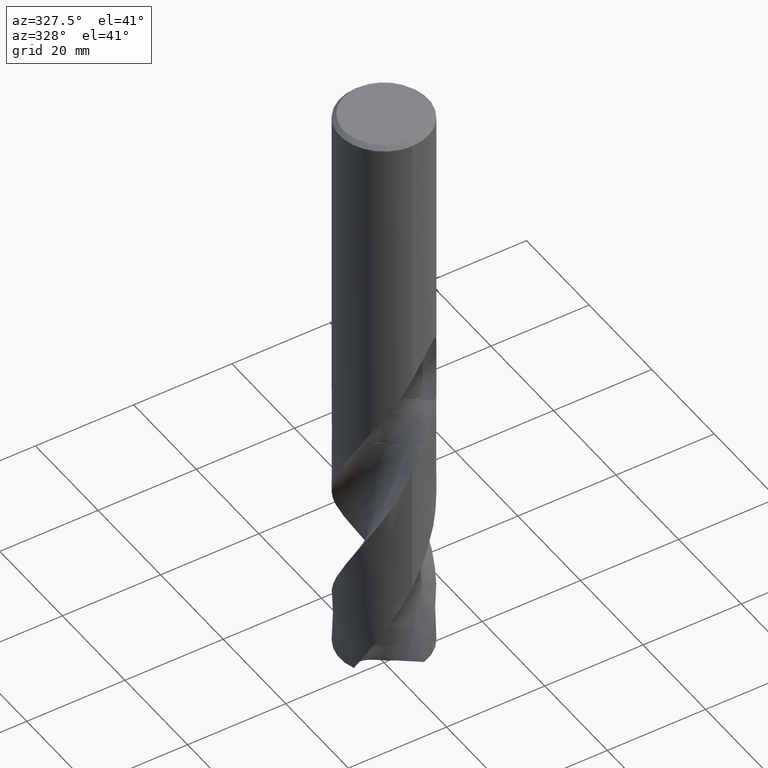
[diagram: clean part render]
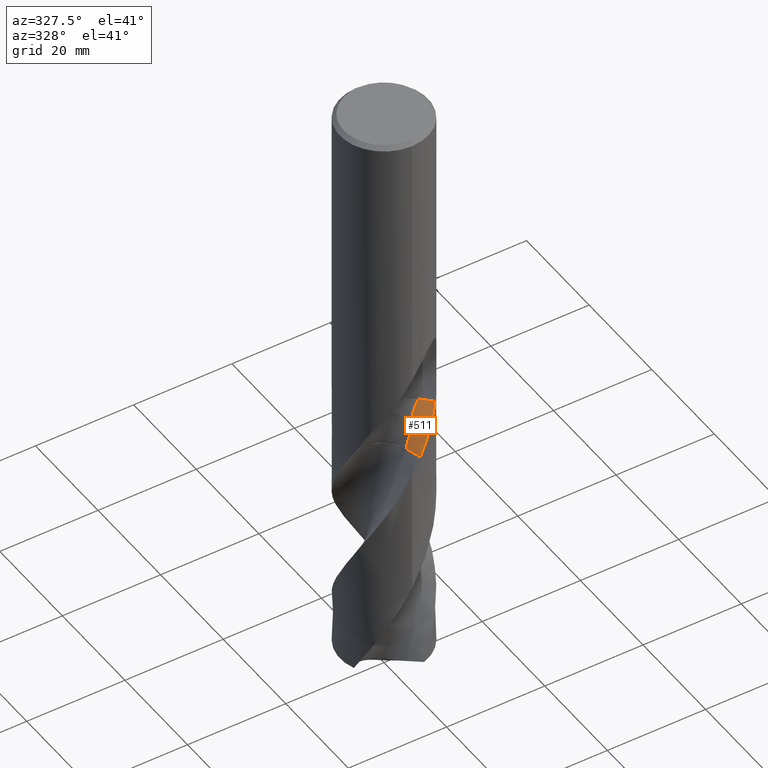
[diagram: same view with one face highlighted and labeled with its STEP entity id]
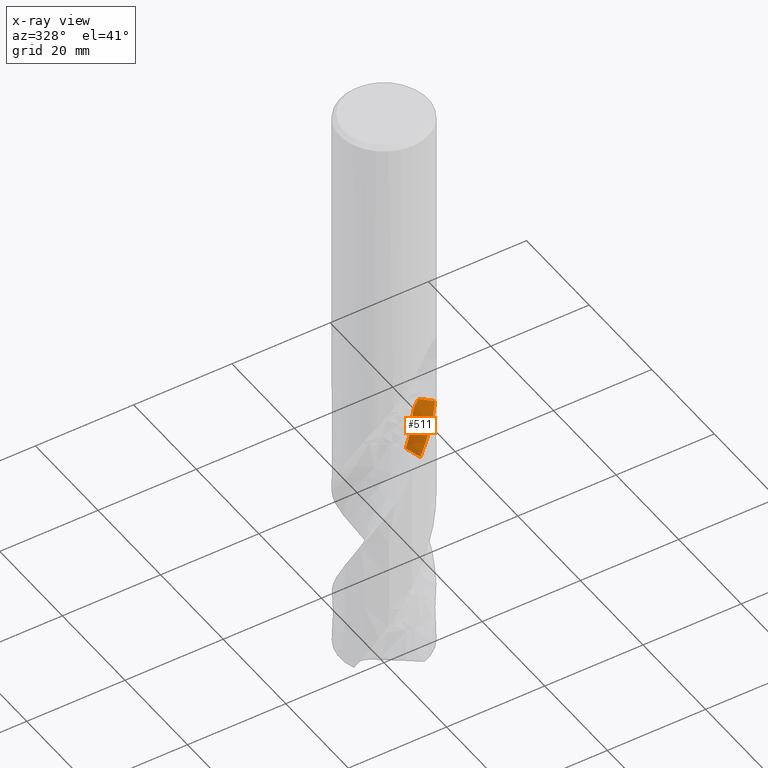
[diagram: x-ray of the same camera — body ghosted, the highlighted face saturated]
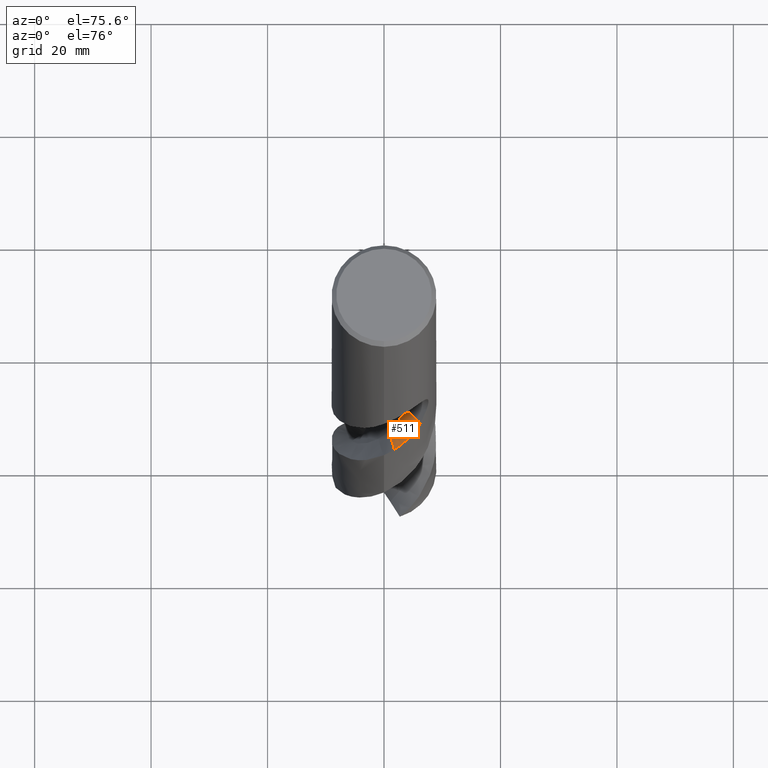
[diagram: same view with one face highlighted and labeled with its STEP entity id]
A machine part, auxiliary view. The second image highlights one B-rep face of the part: STEP entity #511.
The next image is the same camera in x-ray: the body ghosted, the highlighted face saturated — about 0% of this face is hidden behind the body in this view.
A second angle (auxiliary view) of the same face is appended — the face is thin or edge-on in the first view.
In plain terms, the highlighted face is a freeform B-spline surface patch.
Its self-contained STEP definition (entity closure, byte-faithful):
#293=VERTEX_POINT('',#770);
#333=EDGE_CURVE('',#409,#293,#812,.T.);
#339=VERTEX_POINT('',#819);
#409=VERTEX_POINT('',#897);
#421=EDGE_CURVE('',#503,#293,#910,.T.);
#503=VERTEX_POINT('',#998);
#511=ADVANCED_FACE('',(#1006),#1007,.F.);
#607=EDGE_CURVE('',#503,#339,#1111,.T.);
#697=EDGE_CURVE('',#339,#409,#1211,.T.);
#770=CARTESIAN_POINT('',(0.879806644337448,-5.58787155962668,-72.5));
#812=B_SPLINE_CURVE_WITH_KNOTS('',3,(#1563,#1564,#1565,#1566),.UNSPECIFIED.,.F.,.F.,(4,4),(0.0,3.59385555434529),.UNSPECIFIED.);
#819=CARTESIAN_POINT('',(6.2556960835415,-6.47041470930292,-63.613));
#897=CARTESIAN_POINT('',(1.78047736607555,-8.82212561398287,-72.5));
#910=B_SPLINE_CURVE_WITH_KNOTS('',3,(#3492,#3493,#3494,#3495,#3496,#3497,#3498,#3499,#3500,#3501,#3502,#3503,#3504,#3505,#3506,#3507,#3508,#3509,#3510,#3511,#3512,#3513,#3514,#3515,#3516,#3517,#3518,#3519,#3520,#3521,#3522,#3523,#3524,#3525,#3526,#3527,#3528,#3529,#3530,#3531,#3532,#3533,#3534),.UNSPECIFIED.,.F.,.F.,(4,1,2,2,2,2,2,2,1,2,2,2,2,2,2,2,2,2,2,2,1,2,4),(0.0,1.1933961123314,2.3867922246628,3.5801883369942,4.7735844493256,7.1603766739884,9.54716889865119,11.933961123314,14.3207533479768,19.0943377973024,23.867922246628,28.6415066959536,33.4150911452792,38.1886755946048,42.9622600439304,47.735844493256,52.5094289425816,57.2830133919072,62.0565978412328,66.8301822905584,71.603766739884,73.9905589645468,76.3773511892095),.UNSPECIFIED.);
#998=CARTESIAN_POINT('',(4.24264068704858,-4.45735931295143,-63.613));
#1006=FACE_OUTER_BOUND('',#4735,.T.);
#1007=B_SPLINE_SURFACE_WITH_KNOTS('',3,3,((#4736,#4737,#4738,#4739,#4740,#4741,#4742,#4743,#4744,#4745,#4746,#4747,#4748,#4749,#4750,#4751,#4752,#4753,#4754,#4755,#4756,#4757,#4758,#4759,#4760,#4761,#4762,#4763,#4764,#4765,#4766,#4767,#4768,#4769,#4770,#4771,#4772,#4773,#4774,#4775,#4776,#4777,#4778,#4779,#4780,#4781,#4782,#4783,#4784,#4785,#4786,#4787,#4788,#4789),(#4790,#4791,#4792,#4793,#4794,#4795,#4796,#4797,#4798,#4799,#4800,#4801,#4802,#4803,#4804,#4805,#4806,#4807,#4808,#4809,#4810,#4811,#4812,#4813,#4814,#4815,#4816,#4817,#4818,#4819,#4820,#4821,#4822,#4823,#4824,#4825,#4826,#4827,#4828,#4829,#4830,#4831,#4832,#4833,#4834,#4835,#4836,#4837,#4838,#4839,#4840,#4841,#4842,#4843),(#4844,#4845,#4846,#4847,#4848,#4849,#4850,#4851,#4852,#4853,#4854,#4855,#4856,#4857,#4858,#4859,#4860,#4861,#4862,#4863,#4864,#4865,#4866,#4867,#4868,#4869,#4870,#4871,#4872,#4873,#4874,#4875,#4876,#4877,#4878,#4879,#4880,#4881,#4882,#4883,#4884,#4885,#4886,#4887,#4888,#4889,#4890,#4891,#4892,#4893,#4894,#4895,#4896,#4897),(#4898,#4899,#4900,#4901,#4902,#4903,#4904,#4905,#4906,#4907,#4908,#4909,#4910,#4911,#4912,#4913,#4914,#4915,#4916,#4917,#4918,#4919,#4920,#4921,#4922,#4923,#4924,#4925,#4926,#4927,#4928,#4929,#4930,#4931,#4932,#4933,#4934,#4935,#4936,#4937,#4938,#4939,#4940,#4941,#4942,#4943,#4944,#4945,#4946,#4947,#4948,#4949,#4950,#4951)),.UNSPECIFIED.,.F.,.F.,.F.,(4,4),(4,1,2,2,2,2,2,2,1,1,2,1,2,1,2,1,2,1,2,1,2,1,2,1,2,1,2,1,2,1,2,1,2,4),(6.90283062914493E-015,12.0),(0.0,1.1933961123314,2.3867922246628,3.5801883369942,4.7735844493256,7.1603766739884,9.54716889865119,11.933961123314,14.3207533479768,16.7075455726396,19.0943377973024,21.4811300219652,23.867922246628,26.2547144712908,28.6415066959536,31.0282989206164,33.4150911452792,35.801883369942,38.1886755946048,40.5754678192676,42.9622600439304,45.3490522685932,47.735844493256,50.1226367179188,52.5094289425816,54.8962211672444,57.2830133919072,59.66980561657,62.0565978412328,64.4433900658956,66.8301822905584,70.4103706275526,73.9905589645468,76.3773511892095),.UNSPECIFIED.);
#1111=LINE('',#5695,#5696);
#1211=B_SPLINE_CURVE_WITH_KNOTS('',3,(#7813,#7814,#7815,#7816,#7817,#7818,#7819,#7820,#7821,#7822,#7823,#7824,#7825,#7826),.UNSPECIFIED.,.F.,.F.,(4,2,2,2,2,2,4),(0.0,1.98719189226385,3.9133335375622,4.67894246250356,7.31960669479224,8.62810228897354,9.9398865299056),.UNSPECIFIED.);
#1563=CARTESIAN_POINT('',(1.8438846340166,-9.05,-72.5));
#1564=CARTESIAN_POINT('',(1.52276424953588,-7.89588980722824,-72.5));
#1565=CARTESIAN_POINT('',(1.20140542326242,-6.74184853725196,-72.5));
#1566=CARTESIAN_POINT('',(0.879806644433742,-5.58787155959982,-72.5));
#3492=CARTESIAN_POINT('',(4.24264068704858,-4.45735931295143,-63.613));
#3493=CARTESIAN_POINT('',(3.99311787652108,-4.44347410491688,-63.9219619584926));
#3494=CARTESIAN_POINT('',(3.55458274694981,-4.44700793969421,-64.5391290349478));
#3495=CARTESIAN_POINT('',(3.23806163581809,-4.50651466131631,-65.154765391796));
#3496=CARTESIAN_POINT('',(2.98143905017616,-4.59524694775527,-65.7705704837012));
#3497=CARTESIAN_POINT('',(2.88737007013949,-4.65667852537409,-66.0786457896518));
#3498=CARTESIAN_POINT('',(2.75938075732102,-4.8181069006619,-66.6982629351832));
#3499=CARTESIAN_POINT('',(2.69363150798601,-4.89734565589351,-67.0086589231243));
#3500=CARTESIAN_POINT('',(2.49054948242743,-5.13023924277972,-67.9417087531935));
#3501=CARTESIAN_POINT('',(2.3035510144979,-5.24445181323203,-68.5634834671713));
#3502=CARTESIAN_POINT('',(1.86292228561873,-5.38702243073939,-69.7995522331671));
#3503=CARTESIAN_POINT('',(1.63723171172736,-5.4440688885222,-70.4172230406543));
#3504=CARTESIAN_POINT('',(1.18287571729197,-5.53375986124702,-71.6516750673065));
#3505=CARTESIAN_POINT('',(0.960586153309364,-5.57458645499557,-72.2696944917665));
#3506=CARTESIAN_POINT('',(0.523033237646182,-5.64883997041063,-73.5089224154209));
#3507=CARTESIAN_POINT('',(-0.150106992042556,-5.70430299131568,-75.3665150419422));
#3508=CARTESIAN_POINT('',(-0.830404253417298,-5.6221810611302,-77.2210651685434));
#3509=CARTESIAN_POINT('',(-1.70769714951101,-5.42677526196296,-79.6960916988998));
#3510=CARTESIAN_POINT('',(-2.13542691827944,-5.26610838387602,-80.9335145543304));
#3511=CARTESIAN_POINT('',(-2.94179955608336,-4.86971555112628,-83.4082525392972));
#3512=CARTESIAN_POINT('',(-3.31950136478463,-4.61277439321711,-84.645644993992));
#3513=CARTESIAN_POINT('',(-4.00920560064337,-4.03656940293721,-87.120439524931));
#3514=CARTESIAN_POINT('',(-4.31542911530637,-3.69752698084002,-88.35783124431));
#3515=CARTESIAN_POINT('',(-4.849482576518,-2.97472540820818,-90.8326091736827));
#3516=CARTESIAN_POINT('',(-5.06693668263404,-2.57294940819372,-92.0700003025889));
#3517=CARTESIAN_POINT('',(-5.41506348344108,-1.74441905619538,-94.5447872540186));
#3518=CARTESIAN_POINT('',(-5.53144056837301,-1.30265994584928,-95.7821774599568));
#3519=CARTESIAN_POINT('',(-5.6740523197749,-0.415418885514051,-98.2569620063488));
#3520=CARTESIAN_POINT('',(-5.68276071331416,0.0413231635224889,-99.4943521170809));
#3521=CARTESIAN_POINT('',(-5.61161099227613,0.937149619326124,-101.96913067123));
#3522=CARTESIAN_POINT('',(-5.5120759412614,1.38302894588859,-103.206530461748));
#3523=CARTESIAN_POINT('',(-5.2310416167569,2.23669047320509,-105.681316839958));
#3524=CARTESIAN_POINT('',(-5.02899114824391,2.64640940914849,-106.918688203885));
#3525=CARTESIAN_POINT('',(-4.55445658107632,3.40951945467019,-109.393456861109));
#3526=CARTESIAN_POINT('',(-4.26117628635966,3.75988086982488,-110.630896683393));
#3527=CARTESIAN_POINT('',(-3.61908306422379,4.38899552147486,-113.10573585417));
#3528=CARTESIAN_POINT('',(-3.25182423710655,4.66031103713013,-114.343018455461));
#3529=CARTESIAN_POINT('',(-2.48148873055855,5.12139757130905,-116.817723025079));
#3530=CARTESIAN_POINT('',(-1.84729905485873,5.38435014340555,-118.674444741216));
#3531=CARTESIAN_POINT('',(-1.19366967072811,5.5453923475751,-120.528825920672));
#3532=CARTESIAN_POINT('',(-0.757846063289569,5.63421744533165,-121.765131385021));
#3533=CARTESIAN_POINT('',(-0.527274246689077,5.65028601986844,-122.383901123818));
#3534=CARTESIAN_POINT('',(-0.290370401118719,5.63942531405816,-123.002041868115));
#4735=EDGE_LOOP('',(#8358,#8359,#8360,#8361));
#4736=CARTESIAN_POINT('',(4.24264068711929,-4.45735931288072,-63.613));
#4737=CARTESIAN_POINT('',(3.99311787659532,-4.44347410484617,-63.9219619584917));
#4738=CARTESIAN_POINT('',(3.55458274702056,-4.44700793961995,-64.5391290349487));
#4739=CARTESIAN_POINT('',(3.23806163588841,-4.50651466125596,-65.154765391795));
#4740=CARTESIAN_POINT('',(2.98143905025355,-4.59524694768079,-65.770570483702));
#4741=CARTESIAN_POINT('',(2.88737007021716,-4.65667852531464,-66.0786457896499));
#4742=CARTESIAN_POINT('',(2.7593807573987,-4.81810690059538,-66.6982629351848));
#4743=CARTESIAN_POINT('',(2.69363150806447,-4.89734565582921,-67.0086589231242));
#4744=CARTESIAN_POINT('',(2.4905494825165,-5.13023924273662,-67.9417087531934));
#4745=CARTESIAN_POINT('',(2.30355101458662,-5.24445181317881,-68.5634834671784));
#4746=CARTESIAN_POINT('',(1.86292228570745,-5.3870224307003,-69.7995522331601));
#4747=CARTESIAN_POINT('',(1.63723171182077,-5.44406888847943,-70.4172230406543));
#4748=CARTESIAN_POINT('',(1.18287571738538,-5.53375986121839,-71.6516750673065));
#4749=CARTESIAN_POINT('',(0.960586153399269,-5.57458645496408,-72.2696944917664));
#4750=CARTESIAN_POINT('',(0.52303323775022,-5.64883997039327,-73.5089224154208));
#4751=CARTESIAN_POINT('',(0.0744913546948657,-5.68600555398801,-74.7473254601693));
#4752=CARTESIAN_POINT('',(-0.604284378728262,-5.64922467509117,-76.6028331534426));
#4753=CARTESIAN_POINT('',(-1.04972747734135,-5.57332961134958,-77.8398218011325));
#4754=CARTESIAN_POINT('',(-1.48837392538821,-5.47562671176596,-79.0773350663107));
#4755=CARTESIAN_POINT('',(-1.92203529410563,-5.3464715136937,-80.3148977125327));
#4756=CARTESIAN_POINT('',(-2.33702007760824,-5.16701017571587,-81.5521990506003));
#4757=CARTESIAN_POINT('',(-2.74020639656673,-4.96881375935513,-82.7895680430272));
#4758=CARTESIAN_POINT('',(-3.13110999240701,-4.741171467331,-84.0270425057084));
#4759=CARTESIAN_POINT('',(-3.49192742365204,-4.4687231457027,-85.2643436267267));
#4760=CARTESIAN_POINT('',(-3.83677954160968,-4.18062065056276,-86.5017408921962));
#4761=CARTESIAN_POINT('',(-4.1627467715117,-3.86686460308354,-87.739229260004));
#4762=CARTESIAN_POINT('',(-4.44894248056989,-3.5168265877557,-88.9765257266814));
#4763=CARTESIAN_POINT('',(-4.71596921111918,-3.15542580143979,-90.2139146913112));
#4764=CARTESIAN_POINT('',(-4.95858324809054,-2.7735582638587,-91.4513985553869));
#4765=CARTESIAN_POINT('',(-5.1539683827804,-2.36581682028168,-92.6886970404462));
#4766=CARTESIAN_POINT('',(-5.32803178319805,-1.95155164428251,-93.9260905161611));
#4767=CARTESIAN_POINT('',(-5.47354866660654,-1.52317906287165,-95.1635762272903));
#4768=CARTESIAN_POINT('',(-5.56709350620427,-1.08084968085489,-96.4008735964982));
#4769=CARTESIAN_POINT('',(-5.63839938189108,-0.637229150701411,-97.6382658698073));
#4770=CARTESIAN_POINT('',(-5.67861064603272,-0.186627951329806,-98.8757509493585));
#4771=CARTESIAN_POINT('',(-5.66497328304486,0.265279777373435,-100.113046755618));
#4772=CARTESIAN_POINT('',(-5.62939842253997,0.713193005275252,-101.350436032693));
#4773=CARTESIAN_POINT('',(-5.56194340673187,1.16054513580755,-102.587924414761));
#4774=CARTESIAN_POINT('',(-5.44181736014918,1.59644432761994,-103.825227056244));
#4775=CARTESIAN_POINT('',(-5.30130019791106,2.02327509127819,-105.062620245462));
#4776=CARTESIAN_POINT('',(-5.13000320350619,2.44201615877237,-106.300096348599));
#4777=CARTESIAN_POINT('',(-4.91035750648842,2.83718692043886,-107.537380368134));
#4778=CARTESIAN_POINT('',(-4.67309022291876,3.21874194319971,-108.774764696859));
#4779=CARTESIAN_POINT('',(-4.40769846398581,3.58515142478941,-110.012270567426));
#4780=CARTESIAN_POINT('',(-4.10065298088922,3.91715953266015,-111.249606476087));
#4781=CARTESIAN_POINT('',(-3.77960636982128,4.23171685848514,-112.487026061476));
#4782=CARTESIAN_POINT('',(-3.43521551912337,4.52505627548231,-113.724471241471));
#4783=CARTESIAN_POINT('',(-3.05924036054954,4.77558267061484,-114.961694597865));
#4784=CARTESIAN_POINT('',(-2.57778066895704,5.06376175447666,-116.508384953877));
#4785=CARTESIAN_POINT('',(-1.95710264867631,5.34801812427616,-118.36500103077));
#4786=CARTESIAN_POINT('',(-1.3026255726837,5.52318607310782,-120.219749554499));
#4787=CARTESIAN_POINT('',(-0.757846063385524,5.6342174453035,-121.765131385077));
#4788=CARTESIAN_POINT('',(-0.527274246773513,5.65028601985158,-122.383901123762));
#4789=CARTESIAN_POINT('',(-0.290370401217287,5.6394253140413,-123.002041868115));
#4790=CARTESIAN_POINT('',(7.07106781186291,-7.28578643764211,-63.6129999999511));
#4791=CARTESIAN_POINT('',(6.82131774834343,-7.27212876525606,-63.9219677881606));
#4792=CARTESIAN_POINT('',(6.36128830669422,-7.297392798362,-64.5379829957177));
#4793=CARTESIAN_POINT('',(5.97951992542659,-7.41994497460124,-65.1508885835722));
#4794=CARTESIAN_POINT('',(5.63325422999612,-7.5904965363491,-65.7642933863773));
#4795=CARTESIAN_POINT('',(5.48058645768276,-7.70368766369339,-66.0714036923668));
#4796=CARTESIAN_POINT('',(5.20451355298611,-7.98518250221826,-66.6917807504371));
#4797=CARTESIAN_POINT('',(5.06206925042585,-8.12221966049657,-67.0029955458555));
#4798=CARTESIAN_POINT('',(4.62126956809945,-8.5210176856602,-67.9399883849887));
#4799=CARTESIAN_POINT('',(4.28573652011189,-8.72216596158894,-68.5642061544328));
#4800=CARTESIAN_POINT('',(3.57281065159518,-9.00639151162284,-69.7992347574499));
#4801=CARTESIAN_POINT('',(3.20778163580935,-9.12601591928575,-70.4160929790748));
#4802=CARTESIAN_POINT('',(2.46789695046005,-9.32481037680592,-71.6482182063997));
#4803=CARTESIAN_POINT('',(2.09518581681007,-9.41374424857483,-72.2657035368793));
#4804=CARTESIAN_POINT('',(1.34216108421075,-9.56744642878799,-73.5063842968483));
#4805=CARTESIAN_POINT('',(0.578212256366805,-9.66369843527971,-74.7455873566561));
#4806=CARTESIAN_POINT('',(-0.575343890799001,-9.6585223836824,-76.6006362765206));
#4807=CARTESIAN_POINT('',(-1.33841563683464,-9.56609465607437,-77.8373066716023));
#4808=CARTESIAN_POINT('',(-2.09455034818752,-9.43265367906867,-79.0749160387935));
#4809=CARTESIAN_POINT('',(-2.84131608988225,-9.24906467497677,-80.3126146949556));
#4810=CARTESIAN_POINT('',(-3.56088038907236,-8.97853436541759,-81.5498432260968));
#4811=CARTESIAN_POINT('',(-4.26430522530393,-8.67052443999112,-82.7871963899568));
#4812=CARTESIAN_POINT('',(-4.94672218793541,-8.31593145609578,-84.0247350049059));
#4813=CARTESIAN_POINT('',(-5.58195780350111,-7.88300206534817,-85.2619651794994));
#4814=CARTESIAN_POINT('',(-6.19250146096535,-7.41730135421061,-86.4993669674165));
#4815=CARTESIAN_POINT('',(-6.77165614846283,-6.91135452576214,-87.7369319129502));
#4816=CARTESIAN_POINT('',(-7.28656549427943,-6.34055217308311,-88.974153440488));
#4817=CARTESIAN_POINT('',(-7.76980422966185,-5.74378851196098,-90.211540143894));
#4818=CARTESIAN_POINT('',(-8.21302952271572,-5.11533322523993,-91.4490975133596));
#4819=CARTESIAN_POINT('',(-8.57848767074526,-4.43902760272516,-92.6863217880995));
#4820=CARTESIAN_POINT('',(-8.90702035915396,-3.74497441782573,-93.9237175250383));
#4821=CARTESIAN_POINT('',(-9.18920243941957,-3.02958494732141,-95.1612768129798));
#4822=CARTESIAN_POINT('',(-9.38454675763429,-2.28608427763648,-96.3985006793465));
#4823=CARTESIAN_POINT('',(-9.539838443732,-1.53405995093811,-97.6358929526556));
#4824=CARTESIAN_POINT('',(-9.64501857042477,-0.772251027628393,-98.8734528640845));
#4825=CARTESIAN_POINT('',(-9.65912148258281,-0.00364299561981077,-100.110673982699));
#4826=CARTESIAN_POINT('',(-9.63226872771935,0.763775507249752,-101.348058737326));
#4827=CARTESIAN_POINT('',(-9.55439628566004,1.52885646382004,-102.585622098198));
#4828=CARTESIAN_POINT('',(-9.3863889662632,2.27900455961912,-103.822857160036));
#4829=CARTESIAN_POINT('',(-9.17885478258552,3.01830819211514,-105.060250349254));
#4830=CARTESIAN_POINT('',(-8.92236401433903,3.74329970143431,-106.297801603807));
#4831=CARTESIAN_POINT('',(-8.58192291569936,4.43253876419348,-107.53500273182));
#4832=CARTESIAN_POINT('',(-8.20567120496759,5.10193175271076,-108.772373493202));
#4833=CARTESIAN_POINT('',(-7.78511779605246,5.74578880250777,-110.009958560309));
#4834=CARTESIAN_POINT('',(-7.29126760067945,6.33490491604033,-111.247243952089));
#4835=CARTESIAN_POINT('',(-6.76726088706928,6.89619228889512,-112.484690672163));
#4836=CARTESIAN_POINT('',(-6.20654633856286,7.42249365256041,-113.722198060857));
#4837=CARTESIAN_POINT('',(-5.58798736235247,7.87897592560353,-114.959290595084));
#4838=CARTESIAN_POINT('',(-4.7864973678828,8.40729132778936,-116.50590746132));
#4839=CARTESIAN_POINT('',(-3.76134813312356,8.94149269438856,-118.362770975441));
#4840=CARTESIAN_POINT('',(-2.66185051029698,9.29301258442058,-120.21743802747));
#4841=CARTESIAN_POINT('',(-1.72833411849712,9.51808171446062,-121.762571123426));
#4842=CARTESIAN_POINT('',(-1.34707870841583,9.56815082595149,-122.381690455355));
#4843=CARTESIAN_POINT('',(-0.964799086525046,9.58215792927766,-122.99970230995));
#4844=CARTESIAN_POINT('',(9.89949493661422,-10.1142135623579,-63.6130000000488));
#4845=CARTESIAN_POINT('',(9.64951735597767,-10.1007828417865,-63.9219737337603));
#4846=CARTESIAN_POINT('',(9.1679939787082,-10.1477777902725,-64.5368369707652));
#4847=CARTESIAN_POINT('',(8.72097825413746,-10.33337560528,-65.1470116315665));
#4848=CARTESIAN_POINT('',(8.28506937053526,-10.5857458075335,-65.7580164331181));
#4849=CARTESIAN_POINT('',(8.0738026603031,-10.7506967827095,-66.0641615637604));
#4850=CARTESIAN_POINT('',(7.64964653332179,-11.1522581227497,-66.6852985972952));
#4851=CARTESIAN_POINT('',(7.43050698960094,-11.3470935449849,-66.9973321657642));
#4852=CARTESIAN_POINT('',(6.75198966003565,-11.9117963686071,-67.938268022971));
#4853=CARTESIAN_POINT('',(6.26792256399754,-12.1998805112486,-68.5649290184524));
#4854=CARTESIAN_POINT('',(5.28269847923223,-12.6257601911876,-69.7989171052735));
#4855=CARTESIAN_POINT('',(4.77833245919421,-12.8079628208154,-70.4149625323357));
#4856=CARTESIAN_POINT('',(3.7529172843253,-13.1158610213344,-71.6447617310291));
#4857=CARTESIAN_POINT('',(3.22978529685763,-13.2529010929407,-72.2617120076041));
#4858=CARTESIAN_POINT('',(2.16128911412094,-13.4860538361504,-73.5038467529569));
#4859=CARTESIAN_POINT('',(1.08193320083009,-13.6413909700405,-74.7438481158025));
#4860=CARTESIAN_POINT('',(-0.546402572671495,-13.6678195651572,-76.5984404767707));
#4861=CARTESIAN_POINT('',(-1.62710328664227,-13.5588592876215,-77.8347906723709));
#4862=CARTESIAN_POINT('',(-2.70072728034997,-13.3896810593884,-79.0724978810781));
#4863=CARTESIAN_POINT('',(-3.76059719497462,-13.1516580118027,-80.310330341488));
#4864=CARTESIAN_POINT('',(-4.78473957157707,-12.7900577901904,-81.5474892041265));
#4865=CARTESIAN_POINT('',(-5.78840518257452,-12.3722358852889,-82.7848229345766));
#4866=CARTESIAN_POINT('',(-6.76233304466189,-11.8906908828365,-84.0224284390094));
#4867=CARTESIAN_POINT('',(-7.67198973194935,-11.2972813442395,-85.2595866648143));
#4868=CARTESIAN_POINT('',(-8.54822183141099,-10.6539816984591,-86.4969931101176));
#4869=CARTESIAN_POINT('',(-9.38056594366428,-9.95584468384907,-87.7346341832338));
#4870=CARTESIAN_POINT('',(-10.1241892192822,-9.1642776466599,-88.9717818523721));
#4871=CARTESIAN_POINT('',(-10.8236385367498,-8.33215133433127,-90.2091648987573));
#4872=CARTESIAN_POINT('',(-11.4674764400915,-7.45710769958622,-91.4467956823007));
#4873=CARTESIAN_POINT('',(-12.0030063840607,-6.512239247378,-92.6839488123515));
#4874=CARTESIAN_POINT('',(-12.4860095092894,-5.53839632919729,-93.9213422579921));
#4875=CARTESIAN_POINT('',(-12.9048557756353,-4.53599168676789,-95.1589803614711));
#4876=CARTESIAN_POINT('',(-13.2020003076561,-3.49131802644074,-96.3961241133661));
#4877=CARTESIAN_POINT('',(-13.4412772069331,-2.43089159921429,-97.6335236837575));
#4878=CARTESIAN_POINT('',(-13.6114271260959,-1.35787354212419,-98.87115314348));
#4879=CARTESIAN_POINT('',(-13.6532687174848,-0.272566044746379,-100.108300832901));
#4880=CARTESIAN_POINT('',(-13.6351399971714,0.814358285027402,-101.345681818859));
#4881=CARTESIAN_POINT('',(-13.5468490707736,1.89716742145499,-102.583322726933));
#4882=CARTESIAN_POINT('',(-13.3309597949446,2.96156525602803,-103.820480998201));
#4883=CARTESIAN_POINT('',(-13.0564101445883,4.01334082846521,-105.057886717765));
#4884=CARTESIAN_POINT('',(-12.714724313041,5.0445840282859,-106.295504305031));
#4885=CARTESIAN_POINT('',(-12.2534885711066,6.02788950343844,-107.532623938342));
#4886=CARTESIAN_POINT('',(-11.738251940492,6.98512266653213,-108.769983447309));
#4887=CARTESIAN_POINT('',(-11.1625369610778,7.90642535789774,-110.007645703716));
#4888=CARTESIAN_POINT('',(-10.4818828006625,8.75265083870894,-111.244881971115));
#4889=CARTESIAN_POINT('',(-9.75491482417019,9.56066717990496,-112.482354740035));
#4890=CARTESIAN_POINT('',(-8.97787754096147,10.3199313537307,-113.719925387682));
#4891=CARTESIAN_POINT('',(-8.11673417858602,10.9823690709314,-114.95688611974));
#4892=CARTESIAN_POINT('',(-6.99521434516105,11.7508210651376,-116.503430678116));
#4893=CARTESIAN_POINT('',(-5.56559267883582,12.5349672218089,-118.360539886427));
#4894=CARTESIAN_POINT('',(-4.02107704701558,13.0628390159738,-120.215127857978));
#4895=CARTESIAN_POINT('',(-2.69882110779107,13.4019460367228,-121.7600099571));
#4896=CARTESIAN_POINT('',(-2.16688230390167,13.4860163229128,-122.379477342208));
#4897=CARTESIAN_POINT('',(-1.6392277719653,13.5248905443596,-122.997362752161));
#4898=CARTESIAN_POINT('',(12.7279220613578,-12.9426406871193,-63.613));
#4899=CARTESIAN_POINT('',(12.4777175103788,-12.9294372195434,-63.9219795280976));
#4900=CARTESIAN_POINT('',(11.9746994677186,-12.9981628610043,-64.5356908785368));
#4901=CARTESIAN_POINT('',(11.4624364023491,-13.2468057772988,-65.1431349646702));
#4902=CARTESIAN_POINT('',(10.9368846916043,-13.5809955375283,-65.751739194467));
#4903=CARTESIAN_POINT('',(10.6670190477687,-13.7977062037412,-66.056919395814));
#4904=CARTESIAN_POINT('',(10.0947793289092,-14.3193334417196,-66.6788164832108));
#4905=CARTESIAN_POINT('',(9.79894473196231,-14.5719674083257,-66.9916687884955));
#4906=CARTESIAN_POINT('',(8.88270974561859,-15.3025750941836,-67.9365476547663));
#4907=CARTESIAN_POINT('',(8.25010778686983,-15.6775943770057,-68.5656517057068));
#4908=CARTESIAN_POINT('',(6.99258712777295,-16.2451295547631,-69.7985996295634));
#4909=CARTESIAN_POINT('',(6.34888210052981,-16.4899095689687,-70.4138321881032));
#4910=CARTESIAN_POINT('',(5.03793880005295,-16.9069118195749,-71.6413051527754));
#4911=CARTESIAN_POINT('',(4.36438411230949,-17.0920591692044,-72.257721618023));
#4912=CARTESIAN_POINT('',(2.9804178085404,-17.4046600118921,-73.5013080690785));
#4913=CARTESIAN_POINT('',(1.58565424382852,-17.6190835686792,-74.7421102949422));
#4914=CARTESIAN_POINT('',(-0.517462084742234,-17.6771171324219,-76.5962433171957));
#4915=CARTESIAN_POINT('',(-1.91579088082959,-17.5516257456112,-77.8322761081467));
#4916=CARTESIAN_POINT('',(-3.30690426845524,-17.3467066134262,-79.070078288255));
#4917=CARTESIAN_POINT('',(-4.67987784942475,-17.0542517383918,-80.3080470412579));
#4918=CARTESIAN_POINT('',(-6.00859960038821,-16.6015822625451,-81.545134510235));
#4919=CARTESIAN_POINT('',(-7.3125042939647,-16.073946283272,-82.7824501508944));
#4920=CARTESIAN_POINT('',(-8.57794481621082,-15.4654511542542,-84.0201215035128));
#4921=CARTESIAN_POINT('',(-9.76202067710437,-14.711559981232,-85.2572082175869));
#4922=CARTESIAN_POINT('',(-10.9039431854607,-13.8906626847599,-86.494619185338));
#4923=CARTESIAN_POINT('',(-11.9894751792889,-13.0003344652012,-87.7323374014861));
#4924=CARTESIAN_POINT('',(-12.9618130809507,-11.9880032319873,-88.9694084355667));
#4925=CARTESIAN_POINT('',(-13.8774727073336,-10.9205140448525,-90.206791481952));
#4926=CARTESIAN_POINT('',(-14.7219235626756,-9.79888266096744,-91.4444946402735));
#4927=CARTESIAN_POINT('',(-15.4275248240667,-8.58545002982148,-92.6815724293929));
#4928=CARTESIAN_POINT('',(-16.0649989332043,-7.33181910274051,-93.9189703974812));
#4929=CARTESIAN_POINT('',(-16.6205092657954,-6.04239757121766,-95.1566792512428));
#4930=CARTESIAN_POINT('',(-17.0194532764332,-4.69655262322232,-96.3937534574382));
#4931=CARTESIAN_POINT('',(-17.342716551427,-3.32772239945099,-97.631148505382));
#4932=CARTESIAN_POINT('',(-17.577834767835,-1.94349661842278,-98.8688573194299));
#4933=CARTESIAN_POINT('',(-17.6474171996757,-0.541488817739625,-100.105925798758));
#4934=CARTESIAN_POINT('',(-17.6380100196978,0.864940787001901,-101.343306784716));
#4935=CARTESIAN_POINT('',(-17.5393023736813,2.26547889079397,-102.581019279758));
#4936=CARTESIAN_POINT('',(-17.2755308357526,3.64412520537423,-103.818111101993));
#4937=CARTESIAN_POINT('',(-16.9339652945687,5.00837421195514,-105.055516821556));
#4938=CARTESIAN_POINT('',(-16.5070846998944,6.34586771227432,-106.293210690851));
#4939=CARTESIAN_POINT('',(-15.9250542629705,7.6232407818871,-107.530244040804));
#4940=CARTESIAN_POINT('',(-15.2708326398879,8.86831304134913,-108.767594504875));
#4941=CARTESIAN_POINT('',(-14.5399568584504,10.0670624529631,-110.005333696599));
#4942=CARTESIAN_POINT('',(-13.6724965724938,11.1703962220891,-111.242517185892));
#4943=CARTESIAN_POINT('',(-12.7425701893771,12.2251426103149,-112.480021611946));
#4944=CARTESIAN_POINT('',(-11.749207795095,13.2173687308088,-113.717651076456));
#4945=CARTESIAN_POINT('',(-10.6454814630419,14.0857623259201,-114.954482116959));
#4946=CARTESIAN_POINT('',(-9.20393062010734,15.0943506384503,-116.50095318556));
#4947=CARTESIAN_POINT('',(-7.3698383752728,16.1284422159007,-118.358309831098));
#4948=CARTESIAN_POINT('',(-5.38030198462886,16.8326646793276,-120.212816330949));
#4949=CARTESIAN_POINT('',(-3.66930916290266,17.2858108711858,-121.757449695448));
#4950=CARTESIAN_POINT('',(-2.98668563493207,17.4038811290127,-122.377264412577));
#4951=CARTESIAN_POINT('',(-2.31365645727306,17.4676231595959,-122.995023193996));
#5695=CARTESIAN_POINT('',(4.24264068711928,-4.45735931288071,-63.613));
#5696=VECTOR('',#8469,0.999999999999999);
#7813=CARTESIAN_POINT('',(6.25569608354149,-6.47041470930292,-63.613));
#7814=CARTESIAN_POINT('',(6.02938717084349,-6.6892136337057,-64.1958220022826));
#7815=CARTESIAN_POINT('',(5.78738010743153,-6.90097478085627,-64.7778432544386));
#7816=CARTESIAN_POINT('',(5.25467192915728,-7.3142704670718,-65.9406742356973));
#7817=CARTESIAN_POINT('',(4.98927222263643,-7.49804973386225,-66.4726518122589));
#7818=CARTESIAN_POINT('',(4.58766878070613,-7.74411009192948,-67.2742755578077));
#7819=CARTESIAN_POINT('',(4.47297783780148,-7.81089400295332,-67.501848486237));
#7820=CARTESIAN_POINT('',(3.95657112888239,-8.09659624794536,-68.520221953465));
#7821=CARTESIAN_POINT('',(3.53858236200403,-8.28807102350012,-69.3206987261266));
#7822=CARTESIAN_POINT('',(2.88969766968837,-8.52655355042518,-70.5172439217514));
#7823=CARTESIAN_POINT('',(2.67161159446811,-8.59739275276611,-70.9129782394146));
#7824=CARTESIAN_POINT('',(2.22940059343904,-8.7225402686602,-71.7061413508995));
#7825=CARTESIAN_POINT('',(2.00580073296638,-8.77665095488693,-72.1027913558424));
#7826=CARTESIAN_POINT('',(1.78047736607555,-8.82212561398283,-72.5000000000001));
#8358=ORIENTED_EDGE('',*,*,#333,.F.);
#8359=ORIENTED_EDGE('',*,*,#697,.F.);
#8360=ORIENTED_EDGE('',*,*,#607,.F.);
#8361=ORIENTED_EDGE('',*,*,#421,.T.);
#8469=DIRECTION('',(0.707106781186548,-0.707106781186547,0.0));